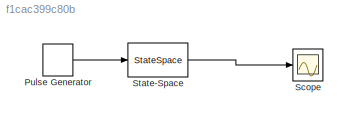
MODEL slx_f1cac399c80b
KIND model
CONFIG AbsTol = auto
CONFIG EnableMultiTasking = off
CONFIG FixedStep = .005
CONFIG MaxStep = auto
CONFIG MinStep = auto
CONFIG RelTol = 1e-3
CONFIG SampleTimeConstraint = Unconstrained
CONFIG Solver = FixedStepAuto
CONFIG SolverName = FixedStepAuto
CONFIG StartTime = 0.0
CONFIG StopTime = 20.0
BLOCK [DiscretePulseGenerator] Pulse Generator
  Period = .1
  Ports = [0, 1]
  PulseType = Time based
  PulseWidth = 10
BLOCK [Scope] Scope
  NumInputPorts = 1
  Ports = [1]
  ScopeSpecificationString = Simulink.scopes.TimeScopeBlockCfg('CurrentConfiguration', extmgr.ConfigurationSet(extmgr.Configuration('Core','General UI',true),extmgr.Configuration('Core','Source UI',true),extmgr.Configuration('Sources','WiredSimulink',true),extmgr.Configuration('Visuals','Time Domain',true,'SerializedDisplays',{struct('MinYLimReal','-2.18147','MaxYLimReal','19.63327','YLabelReal','','MinYLimMag','0.00000','Max...<+1364ch>
BLOCK [StateSpace] State-Space
  A = [-1,-0.1;10,0]
  B = [10;0]
  C = [0,1]
  D = 0
  Ports = [1, 1]
  X0 = 0
LINE Pulse Generator:1 -> State-Space:1
LINE State-Space:1 -> Scope:1
